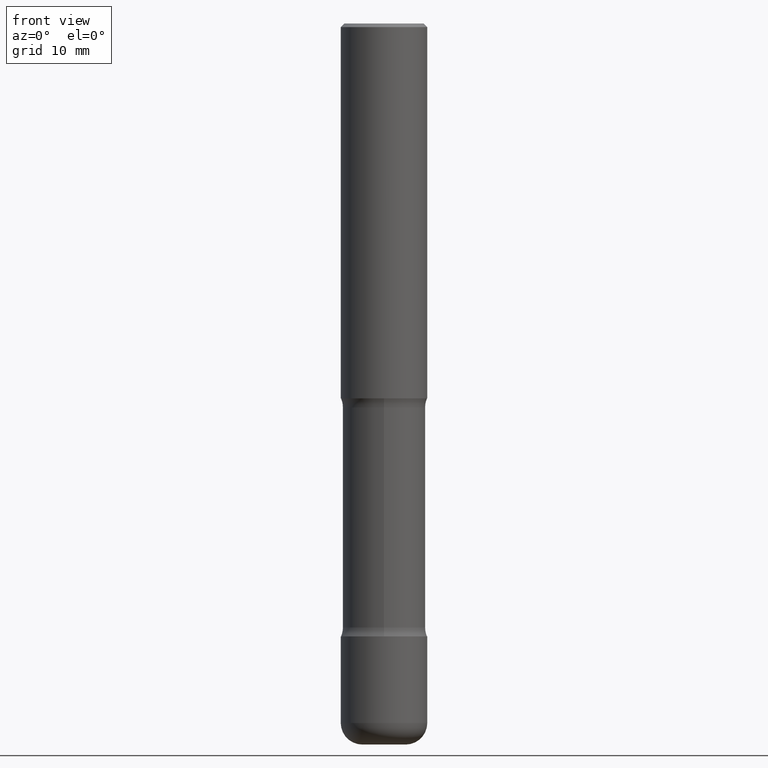
[diagram: clean part render]
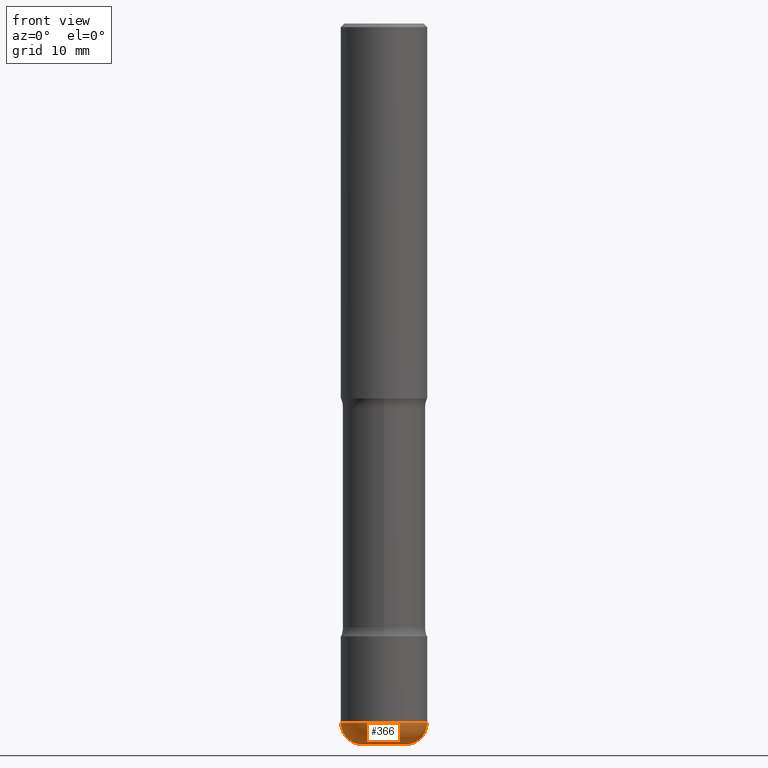
[diagram: same view with one face highlighted and labeled with its STEP entity id]
A machine part, front view. The second image highlights one B-rep face of the part: STEP entity #366.
In plain terms, the highlighted toroidal blend (fillet) surface has major radius 2.9997 mm and minor (blend) radius 2.9997 mm.
Its self-contained STEP definition (entity closure, byte-faithful):
#1 = DIRECTION ( 'NONE',  ( -1.000000000000000000, 7.105427357601005014E-15, 0.000000000000000000 ) ) ;
#7 = CIRCLE ( 'NONE', #188, 0.2362000000000005484 ) ;
#37 = VERTEX_POINT ( 'NONE', #312 ) ;
#82 = CARTESIAN_POINT ( 'NONE',  ( 9.627810689950883669E-29, -1.374596203102546341E-14, -3.937000000000000277 ) ) ;
#106 = DIRECTION ( 'NONE',  ( 1.000000000000000000, -6.982962677686273810E-15, 0.000000000000000000 ) ) ;
#110 = EDGE_LOOP ( 'NONE', ( #328, #407, #539, #176 ) ) ;
#118 = VERTEX_POINT ( 'NONE', #180 ) ;
#123 = AXIS2_PLACEMENT_3D ( 'NONE', #347, #431, #1 ) ;
#176 = ORIENTED_EDGE ( 'NONE', *, *, #234, .F. ) ;
#180 = CARTESIAN_POINT ( 'NONE',  ( 0.1181000000000005379, -1.457064992326021799E-14, -3.937000000000000277 ) ) ;
#188 = AXIS2_PLACEMENT_3D ( 'NONE', #416, #273, #376 ) ;
#197 = CIRCLE ( 'NONE', #346, 0.1180999999999999966 ) ;
#208 = DIRECTION ( 'NONE',  ( -6.982962677686266711E-15, -1.000000000000000000, 3.491481338843145583E-15 ) ) ;
#234 = EDGE_CURVE ( 'NONE', #322, #37, #7, .T. ) ;
#247 = DIRECTION ( 'NONE',  ( 1.000000000000000000, -6.982962677686265133E-15, 4.883557194083112340E-29 ) ) ;
#258 = CARTESIAN_POINT ( 'NONE',  ( 0.1181000000000005379, -1.415830597714284228E-14, -3.818900000000000183 ) ) ;
#273 = DIRECTION ( 'NONE',  ( -2.445468806185136597E-29, 3.491481338843145583E-15, 1.000000000000000000 ) ) ;
#285 = EDGE_CURVE ( 'NONE', #372, #118, #501, .T. ) ;
#312 = CARTESIAN_POINT ( 'NONE',  ( 0.2362000000000005484, -1.498299386937759054E-14, -3.818900000000000183 ) ) ;
#322 = VERTEX_POINT ( 'NONE', #497 ) ;
#324 = AXIS2_PLACEMENT_3D ( 'NONE', #520, #478, #247 ) ;
#328 = ORIENTED_EDGE ( 'NONE', *, *, #448, .F. ) ;
#346 = AXIS2_PLACEMENT_3D ( 'NONE', #258, #208, #380 ) ;
#347 = CARTESIAN_POINT ( 'NONE',  ( -0.1181000000000005379, -1.249446711397540714E-14, -3.818900000000000183 ) ) ;
#361 = TOROIDAL_SURFACE ( 'NONE', #324, 0.1181000000000005379, 0.1181000000000000105 ) ;
#366 = ADVANCED_FACE ( 'NONE', ( #524 ), #361, .T. ) ;
#372 = VERTEX_POINT ( 'NONE', #475 ) ;
#376 = DIRECTION ( 'NONE',  ( 1.000000000000000000, -6.982962677686264344E-15, 0.000000000000000000 ) ) ;
#380 = DIRECTION ( 'NONE',  ( 1.000000000000000000, -6.982962677686273021E-15, 0.000000000000000000 ) ) ;
#390 = CIRCLE ( 'NONE', #123, 0.1180999999999999966 ) ;
#407 = ORIENTED_EDGE ( 'NONE', *, *, #285, .T. ) ;
#416 = CARTESIAN_POINT ( 'NONE',  ( 9.339000823940418668E-29, -1.333361808490808928E-14, -3.818900000000000183 ) ) ;
#431 = DIRECTION ( 'NONE',  ( 7.105427357601001859E-15, 1.000000000000000000, -3.491481338843145583E-15 ) ) ;
#437 = EDGE_CURVE ( 'NONE', #118, #37, #197, .T. ) ;
#447 = DIRECTION ( 'NONE',  ( -2.445468806185136597E-29, 3.491481338843145583E-15, 1.000000000000000000 ) ) ;
#448 = EDGE_CURVE ( 'NONE', #372, #322, #390, .T. ) ;
#475 = CARTESIAN_POINT ( 'NONE',  ( -0.1181000000000005379, -1.228106360156775550E-14, -3.937000000000000277 ) ) ;
#478 = DIRECTION ( 'NONE',  ( -2.445468806185136597E-29, 3.491481338843145583E-15, 1.000000000000000000 ) ) ;
#484 = AXIS2_PLACEMENT_3D ( 'NONE', #82, #447, #106 ) ;
#497 = CARTESIAN_POINT ( 'NONE',  ( -0.2362000000000005484, -1.165531614304272816E-14, -3.818900000000000183 ) ) ;
#501 = CIRCLE ( 'NONE', #484, 0.1181000000000005379 ) ;
#520 = CARTESIAN_POINT ( 'NONE',  ( 9.339000823940418668E-29, -1.333361808490808928E-14, -3.818900000000000183 ) ) ;
#524 = FACE_OUTER_BOUND ( 'NONE', #110, .T. ) ;
#539 = ORIENTED_EDGE ( 'NONE', *, *, #437, .T. ) ;